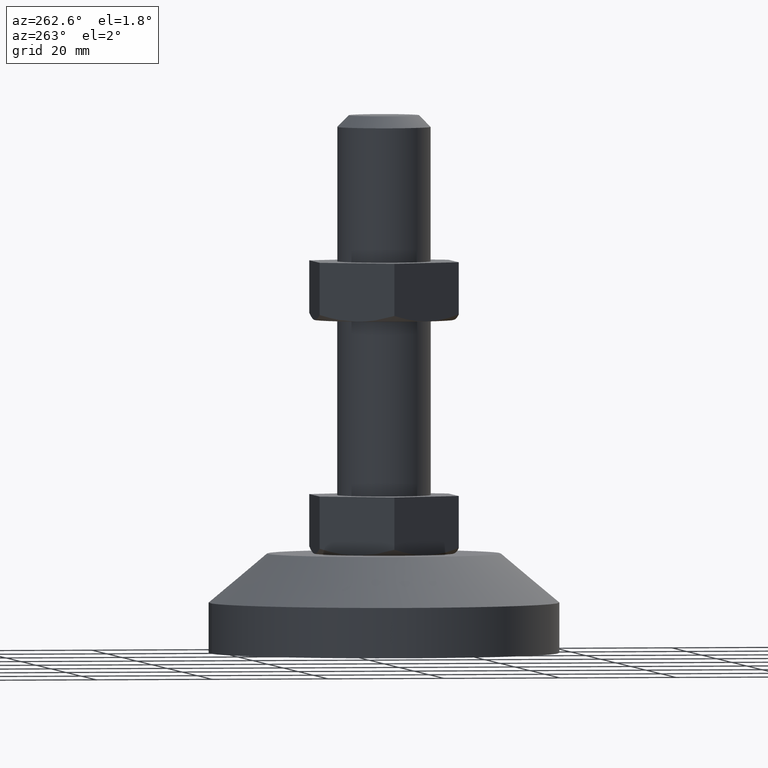
[diagram: clean part render]
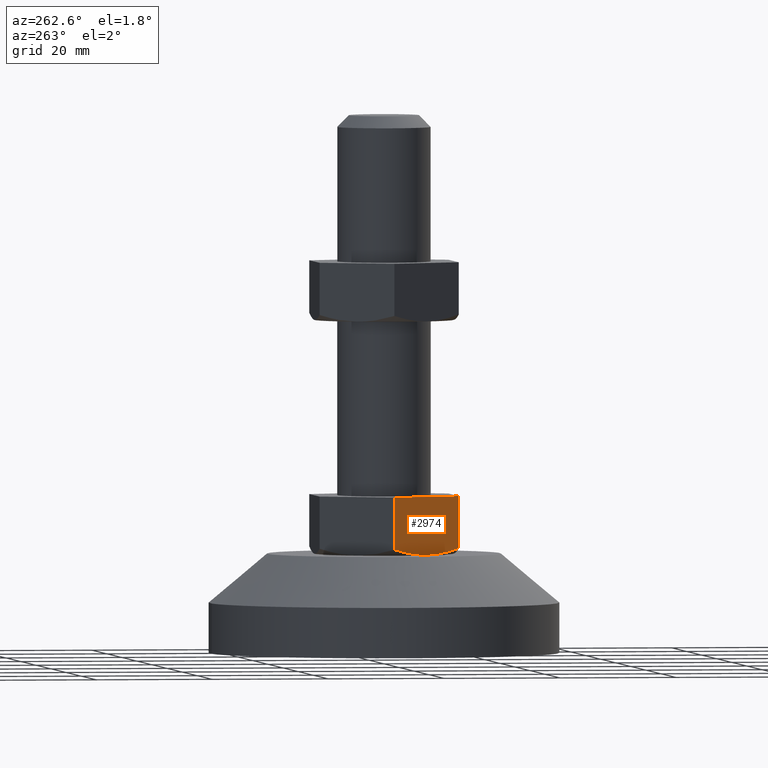
[diagram: same view with one face highlighted and labeled with its STEP entity id]
A machine part, auxiliary view. The second image highlights one B-rep face of the part: STEP entity #2974.
In plain terms, the highlighted face is a freeform B-spline surface patch.
Its self-contained STEP definition (entity closure, byte-faithful):
#2771=CARTESIAN_POINT('',(-13.850000000000000,0.0,27.0));
#2772=VERTEX_POINT('',#2771);
#2778=CARTESIAN_POINT('',(-6.921797000000001,-12.0,27.0));
#2779=VERTEX_POINT('',#2778);
#2780=CARTESIAN_POINT('',(-13.850000000000000,0.0,27.0));
#2781=CARTESIAN_POINT('',(-6.921797000000001,-12.0,27.0));
#2782=QUASI_UNIFORM_CURVE('',1,(#2780,#2781),.UNSPECIFIED.,.F.,.U.);
#2783=EDGE_CURVE('',#2772,#2779,#2782,.T.);
#2905=CARTESIAN_POINT('',(-6.921797000000001,-12.0,18.073646796981048));
#2906=VERTEX_POINT('',#2905);
#2931=CARTESIAN_POINT('',(-6.921797000000001,-12.0,27.0));
#2932=CARTESIAN_POINT('',(-6.921797000000001,-12.0,18.073646796981048));
#2933=QUASI_UNIFORM_CURVE('',1,(#2931,#2932),.UNSPECIFIED.,.F.,.U.);
#2934=EDGE_CURVE('',#2779,#2906,#2933,.T.);
#2939=CARTESIAN_POINT('',(-6.575733273578175,-12.599399976741660,16.501020618289601));
#2940=CARTESIAN_POINT('',(-14.196063912250681,0.599400298606752,16.501020618289601));
#2941=CARTESIAN_POINT('',(-6.575733273578175,-12.599399976741660,27.499475482013459));
#2942=CARTESIAN_POINT('',(-14.196063912250681,0.599400298606752,27.499475482013459));
#2943=B_SPLINE_SURFACE_WITH_KNOTS('',1,1,((#2939,#2941),(#2940,#2942)),.UNSPECIFIED.,.F.,.F.,.U.,(2,2),(2,2),(0.0,15.240661657265020),(0.0,10.998454863723850),.UNSPECIFIED.);
#2944=CARTESIAN_POINT('',(-13.850000000000000,-1.257913E-015,18.071796703249550));
#2945=VERTEX_POINT('',#2944);
#2946=CARTESIAN_POINT('',(-6.921797000000001,-12.0,18.073646796981048));
#2947=CARTESIAN_POINT('',(-7.487395744808455,-11.020354204733630,17.746871707233709));
#2948=CARTESIAN_POINT('',(-8.057123240960102,-10.033557202131410,17.477486530603478));
#2949=CARTESIAN_POINT('',(-8.920640967139478,-8.537900577440640,17.197487447342390));
#2950=CARTESIAN_POINT('',(-9.209971561224814,-8.036765271644310,17.124884310071160));
#2951=CARTESIAN_POINT('',(-9.792008813937102,-7.028647144541599,17.026605552983000));
#2952=CARTESIAN_POINT('',(-10.084718397795729,-6.521659256585152,17.000970594077359));
#2953=CARTESIAN_POINT('',(-10.526498566756480,-5.756473532735980,17.000267858056780));
#2954=CARTESIAN_POINT('',(-10.674504995567760,-5.500118869667462,17.006344165690351));
#2955=CARTESIAN_POINT('',(-10.969168860387370,-4.989746067681827,17.030921595339279));
#2956=CARTESIAN_POINT('',(-11.115988965449031,-4.735446177690162,17.049394320903179));
#2957=CARTESIAN_POINT('',(-11.554980195741431,-3.975091037474307,17.122562304801921));
#2958=CARTESIAN_POINT('',(-11.845678793372031,-3.471586279953903,17.195048965894930));
#2959=CARTESIAN_POINT('',(-12.712599351335401,-1.970035777527761,17.475037277315622));
#2960=CARTESIAN_POINT('',(-13.283666230866340,-0.980918894784686,17.744823749188789));
#2961=CARTESIAN_POINT('',(-13.850000000000019,3.522529E-014,18.071796703249301));
#2962=B_SPLINE_CURVE_WITH_KNOTS('',3,(#2946,#2947,#2948,#2949,#2950,#2951,#2952,#2953,#2954,#2955,#2956,#2957,#2958,#2959,#2960,#2961),.UNSPECIFIED.,.F.,.U.,(4,2,2,2,2,2,2,4),(0.0,0.250000000000000,0.375000000000000,0.500000000000000,0.562500000000000,0.625000000000000,0.750000000000000,1.0),.UNSPECIFIED.);
#2963=EDGE_CURVE('',#2906,#2945,#2962,.T.);
#2964=ORIENTED_EDGE('',*,*,#2963,.F.);
#2965=ORIENTED_EDGE('',*,*,#2934,.F.);
#2966=ORIENTED_EDGE('',*,*,#2783,.F.);
#2967=CARTESIAN_POINT('',(-13.850000000000000,0.0,27.0));
#2968=CARTESIAN_POINT('',(-13.850000000000000,-1.257913E-015,18.071796703249550));
#2969=QUASI_UNIFORM_CURVE('',1,(#2967,#2968),.UNSPECIFIED.,.F.,.U.);
#2970=EDGE_CURVE('',#2772,#2945,#2969,.T.);
#2971=ORIENTED_EDGE('',*,*,#2970,.T.);
#2972=EDGE_LOOP('',(#2964,#2965,#2966,#2971));
#2973=FACE_OUTER_BOUND('',#2972,.T.);
#2974=ADVANCED_FACE('',(#2973),#2943,.F.);